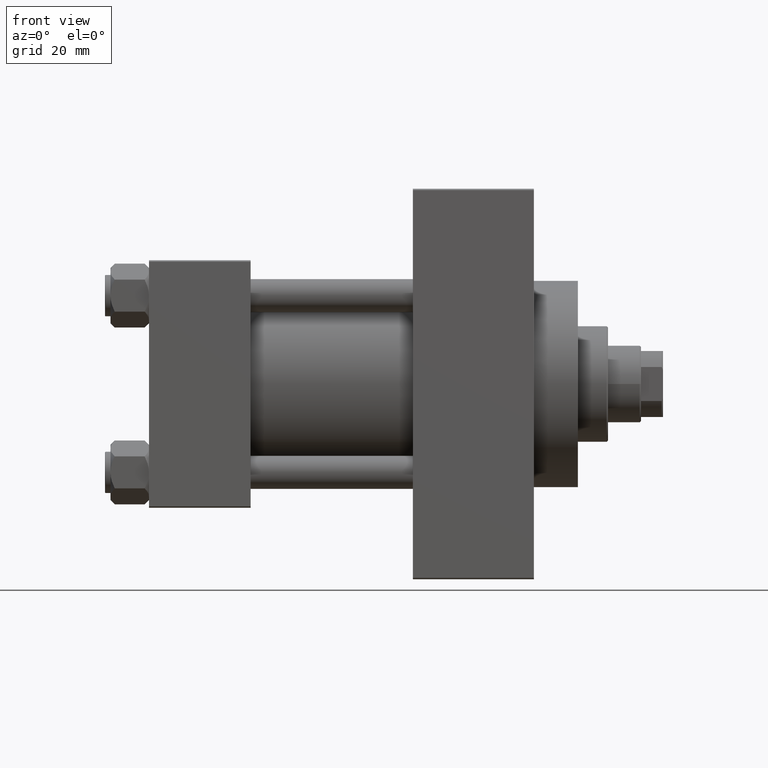
[diagram: clean part render]
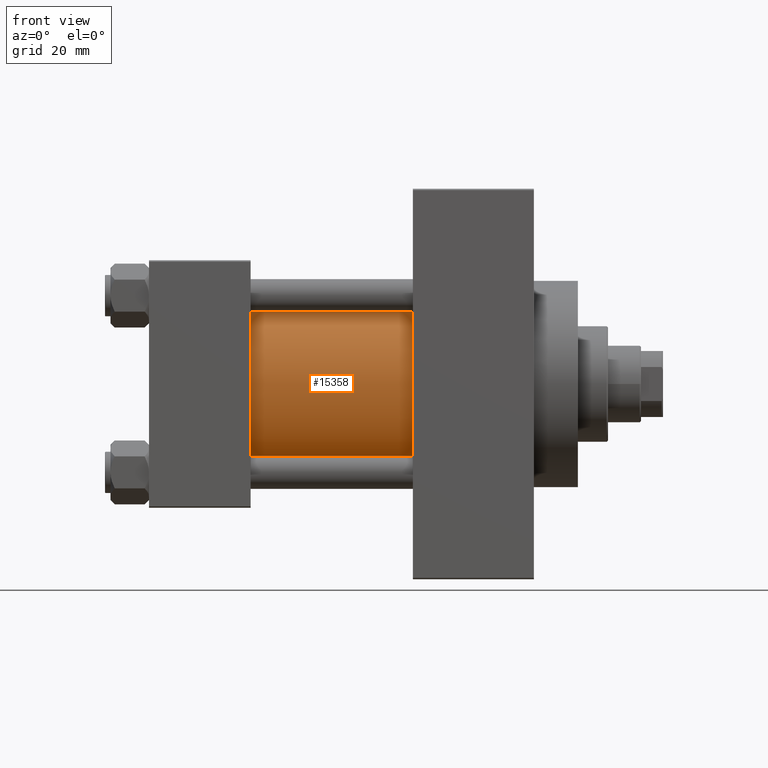
[diagram: same view with one face highlighted and labeled with its STEP entity id]
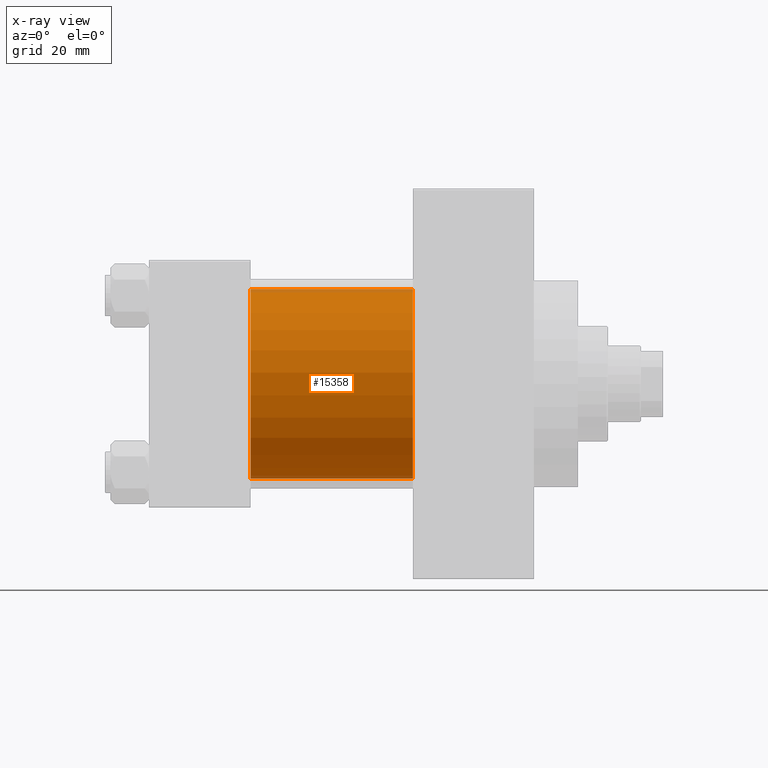
[diagram: x-ray of the same camera — body ghosted, the highlighted face saturated]
A machine part, front view. The second image highlights one B-rep face of the part: STEP entity #15358.
The next image is the same camera in x-ray: the body ghosted, the highlighted face saturated — about 3% of this face is hidden behind the body in this view.
In plain terms, the highlighted cylindrical surface (partial cylindrical patch) has radius 34.5 mm, axis along (-1, -0, -0).
Its self-contained STEP definition (entity closure, byte-faithful):
#302 = CARTESIAN_POINT ( 'NONE',  ( 37.00000000000000000, -2.602085213965210642E-15, 0.000000000000000000 ) ) ;
#2221 = CARTESIAN_POINT ( 'NONE',  ( 96.00000000000000000, -2.602085213965210642E-15, 0.000000000000000000 ) ) ;
#3547 = CARTESIAN_POINT ( 'NONE',  ( 96.00000000000000000, -2.602085213965210642E-15, 0.000000000000000000 ) ) ;
#3684 = LINE ( 'NONE', #43894, #15329 ) ;
#4154 = AXIS2_PLACEMENT_3D ( 'NONE', #302, #34704, #41926 ) ;
#5657 = VERTEX_POINT ( 'NONE', #25101 ) ;
#7952 = LINE ( 'NONE', #31138, #47847 ) ;
#8457 = DIRECTION ( 'NONE',  ( -1.000000000000000000, -0.000000000000000000, -0.000000000000000000 ) ) ;
#9614 = CARTESIAN_POINT ( 'NONE',  ( 96.00000000000000000, -2.602085213965210642E-15, 34.50000000000000000 ) ) ;
#9709 = FACE_OUTER_BOUND ( 'NONE', #31899, .T. ) ;
#9953 = CYLINDRICAL_SURFACE ( 'NONE', #23994, 34.50000000000000000 ) ;
#10985 = CARTESIAN_POINT ( 'NONE',  ( 37.00000000000000000, 1.622946243093158675E-15, -34.50000000000000000 ) ) ;
#13312 = VERTEX_POINT ( 'NONE', #9614 ) ;
#13454 = ORIENTED_EDGE ( 'NONE', *, *, #48898, .T. ) ;
#14142 = VERTEX_POINT ( 'NONE', #10985 ) ;
#15020 = DIRECTION ( 'NONE',  ( 1.000000000000000000, 0.000000000000000000, 0.000000000000000000 ) ) ;
#15329 = VECTOR ( 'NONE', #26627, 1000.000000000000000 ) ;
#15358 = ADVANCED_FACE ( 'NONE', ( #9709 ), #9953, .T. ) ;
#18769 = DIRECTION ( 'NONE',  ( 0.000000000000000000, 0.000000000000000000, -1.000000000000000000 ) ) ;
#19284 = CIRCLE ( 'NONE', #4154, 34.50000000000000000 ) ;
#21162 = ORIENTED_EDGE ( 'NONE', *, *, #48717, .T. ) ;
#22697 = ORIENTED_EDGE ( 'NONE', *, *, #47207, .F. ) ;
#23994 = AXIS2_PLACEMENT_3D ( 'NONE', #2221, #40360, #25420 ) ;
#25101 = CARTESIAN_POINT ( 'NONE',  ( 37.00000000000000000, -2.602085213965210642E-15, 34.50000000000000000 ) ) ;
#25420 = DIRECTION ( 'NONE',  ( 0.000000000000000000, 0.000000000000000000, 1.000000000000000000 ) ) ;
#26627 = DIRECTION ( 'NONE',  ( -1.000000000000000000, -0.000000000000000000, -0.000000000000000000 ) ) ;
#30697 = CARTESIAN_POINT ( 'NONE',  ( 96.00000000000000000, 1.622946243093158675E-15, -34.50000000000000000 ) ) ;
#31138 = CARTESIAN_POINT ( 'NONE',  ( 96.00000000000000000, 1.622946243093158675E-15, -34.50000000000000000 ) ) ;
#31899 = EDGE_LOOP ( 'NONE', ( #46089, #22697, #13454, #21162 ) ) ;
#32763 = CIRCLE ( 'NONE', #42324, 34.50000000000000000 ) ;
#34704 = DIRECTION ( 'NONE',  ( 1.000000000000000000, -0.000000000000000000, 0.000000000000000000 ) ) ;
#35072 = VERTEX_POINT ( 'NONE', #30697 ) ;
#40360 = DIRECTION ( 'NONE',  ( -1.000000000000000000, -0.000000000000000000, -0.000000000000000000 ) ) ;
#41926 = DIRECTION ( 'NONE',  ( 0.000000000000000000, 0.000000000000000000, 1.000000000000000000 ) ) ;
#42324 = AXIS2_PLACEMENT_3D ( 'NONE', #3547, #15020, #18769 ) ;
#43894 = CARTESIAN_POINT ( 'NONE',  ( 96.00000000000000000, -2.602085213965210642E-15, 34.50000000000000000 ) ) ;
#46089 = ORIENTED_EDGE ( 'NONE', *, *, #46587, .F. ) ;
#46587 = EDGE_CURVE ( 'NONE', #35072, #14142, #7952, .T. ) ;
#47207 = EDGE_CURVE ( 'NONE', #13312, #35072, #32763, .T. ) ;
#47847 = VECTOR ( 'NONE', #8457, 1000.000000000000000 ) ;
#48717 = EDGE_CURVE ( 'NONE', #5657, #14142, #19284, .T. ) ;
#48898 = EDGE_CURVE ( 'NONE', #13312, #5657, #3684, .T. ) ;